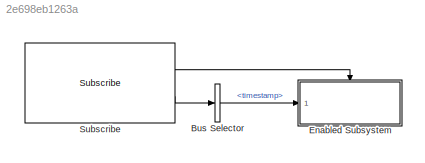
MODEL slx_2e698eb1263a
KIND model
CONFIG AbsTol = auto
CONFIG EnableMultiTasking = on
CONFIG FixedStep = auto
CONFIG MaxStep = auto
CONFIG MinStep = auto
CONFIG RelTol = 1e-3
CONFIG SampleTimeConstraint = Unconstrained
CONFIG SolverName = FixedStepAuto
CONFIG StartTime = 0.0
CONFIG StopTime = inf
BLOCK [BusSelector] Bus Selector
  OutputSignals = timestamp
  Ports = [1, 1]
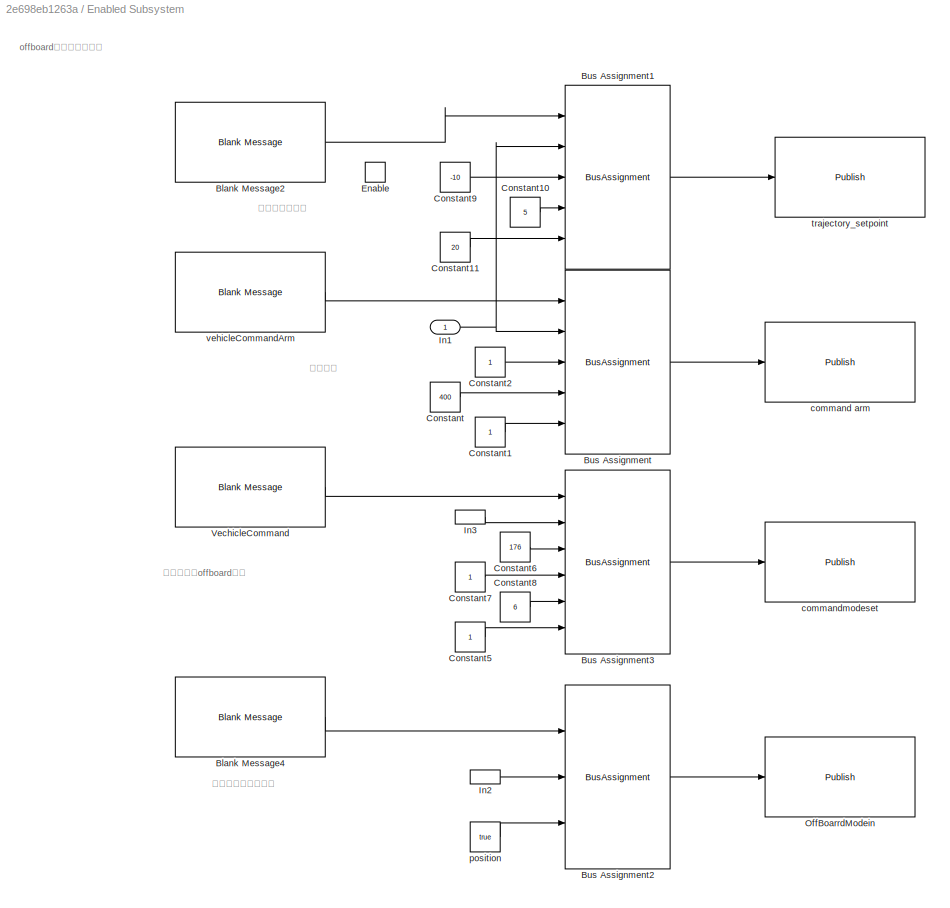
BLOCK [SubSystem] Enabled Subsystem
  Ports = [1, 0, 1]
  RequestExecContextInheritance = off
  TreatAsAtomicUnit = on
BLOCK [Reference] Enabled Subsystem/Blank Message2  REF=ros2lib/Blank Message  (lib defined in slx_3c1549211f48)
  Ports = [0, 1]
  SourceBlock = ros2lib/Blank Message
  SourceProductBaseCode = RR
  SourceType = ROS2 Blank Message
BLOCK [Reference] Enabled Subsystem/Blank Message4  REF=ros2lib/Blank Message  (lib defined in slx_3c1549211f48)
  Ports = [0, 1]
  SourceBlock = ros2lib/Blank Message
  SourceProductBaseCode = RR
  SourceType = ROS2 Blank Message
BLOCK [BusAssignment] Enabled Subsystem/Bus Assignment
  AssignedSignals = timestamp,param1,command,target_system
  Ports = [5, 1]
BLOCK [BusAssignment] Enabled Subsystem/Bus Assignment1
  AssignedSignals = timestamp,z,y,x
  Ports = [5, 1]
BLOCK [BusAssignment] Enabled Subsystem/Bus Assignment2
  AssignedSignals = timestamp,position
  Ports = [3, 1]
BLOCK [BusAssignment] Enabled Subsystem/Bus Assignment3
  AssignedSignals = timestamp,command,param1,param2,target_system
  Ports = [6, 1]
BLOCK [Constant] Enabled Subsystem/Constant
  OutDataTypeStr = uint32
  Value = 400
BLOCK [Constant] Enabled Subsystem/Constant1
  OutDataTypeStr = uint8
BLOCK [Constant] Enabled Subsystem/Constant10
  OutDataTypeStr = single
  Value = 5
  VectorParams1D = off
BLOCK [Constant] Enabled Subsystem/Constant11
  OutDataTypeStr = single
  Value = 20
  VectorParams1D = off
BLOCK [Constant] Enabled Subsystem/Constant2
  OutDataTypeStr = single
BLOCK [Constant] Enabled Subsystem/Constant5
  OutDataTypeStr = uint8
BLOCK [Constant] Enabled Subsystem/Constant6
  OutDataTypeStr = uint32
  Value = 176
  VectorParams1D = off
BLOCK [Constant] Enabled Subsystem/Constant7
  OutDataTypeStr = single
BLOCK [Constant] Enabled Subsystem/Constant8
  OutDataTypeStr = single
  Value = 6
BLOCK [Constant] Enabled Subsystem/Constant9
  OutDataTypeStr = single
  Value = -10
  VectorParams1D = off
BLOCK [EnablePort] Enabled Subsystem/Enable
  Ports = []
BLOCK [Inport] Enabled Subsystem/In1
BLOCK [InportShadow] Enabled Subsystem/In2
BLOCK [InportShadow] Enabled Subsystem/In3
BLOCK [Reference] Enabled Subsystem/OffBoarrdModein  REF=ros2lib/Publish  (lib defined in slx_3c1549211f48)
  Ports = [1]
  SourceBlock = ros2lib/Publish
  SourceProductBaseCode = RR
  SourceType = ROS2 Publish
BLOCK [Reference] Enabled Subsystem/VechicleCommand  REF=ros2lib/Blank Message  (lib defined in slx_3c1549211f48)
  Ports = [0, 1]
  SourceBlock = ros2lib/Blank Message
  SourceProductBaseCode = RR
  SourceType = ROS2 Blank Message
BLOCK [Reference] Enabled Subsystem/command arm  REF=ros2lib/Publish  (lib defined in slx_3c1549211f48)
  Ports = [1]
  SourceBlock = ros2lib/Publish
  SourceProductBaseCode = RR
  SourceType = ROS2 Publish
BLOCK [Reference] Enabled Subsystem/commandmodeset  REF=ros2lib/Publish  (lib defined in slx_3c1549211f48)
  Ports = [1]
  SourceBlock = ros2lib/Publish
  SourceProductBaseCode = RR
  SourceType = ROS2 Publish
BLOCK [Constant] Enabled Subsystem/position
  OutDataTypeStr = boolean
  Value = true
BLOCK [Reference] Enabled Subsystem/trajectory_setpoint  REF=ros2lib/Publish  (lib defined in slx_3c1549211f48)
  Ports = [1]
  SourceBlock = ros2lib/Publish
  SourceProductBaseCode = RR
  SourceType = ROS2 Publish
BLOCK [Reference] Enabled Subsystem/vehicleCommandArm  REF=ros2lib/Blank Message  (lib defined in slx_3c1549211f48)
  Ports = [0, 1]
  SourceBlock = ros2lib/Blank Message
  SourceProductBaseCode = RR
  SourceType = ROS2 Blank Message
BLOCK [Reference] Subscribe  REF=ros2lib/Subscribe  (lib defined in slx_3c1549211f48)
  Ports = [0, 2]
  SourceBlock = ros2lib/Subscribe
  SourceProductBaseCode = RR
  SourceType = ROS2 Subscribe
ANNOTATION Enabled Subsystem: 模式设置为offboard模式
ANNOTATION Enabled Subsystem: 设置为位置控制模式
ANNOTATION Enabled Subsystem: 设置飞行轨迹点
ANNOTATION Enabled Subsystem: 飞机解锁
ANNOTATION Enabled Subsystem: offboard模式下轨迹跟踪
LINE Bus Selector:1 -> Enabled Subsystem:1
LINE Enabled Subsystem/Blank Message2:1 -> Enabled Subsystem/Bus Assignment1:1
LINE Enabled Subsystem/Blank Message4:1 -> Enabled Subsystem/Bus Assignment2:1
LINE Enabled Subsystem/Bus Assignment1:1 -> Enabled Subsystem/trajectory_setpoint:1
LINE Enabled Subsystem/Bus Assignment2:1 -> Enabled Subsystem/OffBoarrdModein:1
LINE Enabled Subsystem/Bus Assignment3:1 -> Enabled Subsystem/commandmodeset:1
LINE Enabled Subsystem/Bus Assignment:1 -> Enabled Subsystem/command arm:1
LINE Enabled Subsystem/Constant10:1 -> Enabled Subsystem/Bus Assignment1:4
LINE Enabled Subsystem/Constant11:1 -> Enabled Subsystem/Bus Assignment1:5
LINE Enabled Subsystem/Constant1:1 -> Enabled Subsystem/Bus Assignment:5
LINE Enabled Subsystem/Constant2:1 -> Enabled Subsystem/Bus Assignment:3
LINE Enabled Subsystem/Constant5:1 -> Enabled Subsystem/Bus Assignment3:6
LINE Enabled Subsystem/Constant6:1 -> Enabled Subsystem/Bus Assignment3:3
LINE Enabled Subsystem/Constant7:1 -> Enabled Subsystem/Bus Assignment3:4
LINE Enabled Subsystem/Constant8:1 -> Enabled Subsystem/Bus Assignment3:5
LINE Enabled Subsystem/Constant9:1 -> Enabled Subsystem/Bus Assignment1:3
LINE Enabled Subsystem/Constant:1 -> Enabled Subsystem/Bus Assignment:4
NET Enabled Subsystem/In1:1 -> Enabled Subsystem/Bus Assignment1:2, Enabled Subsystem/Bus Assignment:2
LINE Enabled Subsystem/In2:1 -> Enabled Subsystem/Bus Assignment2:2
LINE Enabled Subsystem/In3:1 -> Enabled Subsystem/Bus Assignment3:2
LINE Enabled Subsystem/VechicleCommand:1 -> Enabled Subsystem/Bus Assignment3:1
LINE Enabled Subsystem/position:1 -> Enabled Subsystem/Bus Assignment2:3
LINE Enabled Subsystem/vehicleCommandArm:1 -> Enabled Subsystem/Bus Assignment:1
LINE Subscribe:1 -> Enabled Subsystem:enable
LINE Subscribe:2 -> Bus Selector:1
note: NET lines group one-source signal fan-out (src -> all destinations, sorted); 1:1 wires keep LINE
